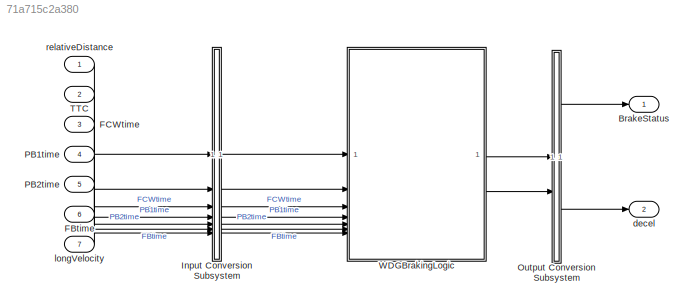
MODEL slx_71a715c2a380
KIND model
CONFIG AbsTol = auto
CONFIG EnableMultiTasking = on
CONFIG FixedStep = 0.10000000000000001
CONFIG MaxStep = auto
CONFIG MinStep = auto
CONFIG RelTol = 1e-3
CONFIG SampleTimeConstraint = Unconstrained
CONFIG SolverName = FixedStepDiscrete
CONFIG StartTime = 0
CONFIG StopTime = 0.5
BLOCK [Outport] BrakeStatus
BLOCK [Inport] FBtime
  Interpolate = off
  OutDataTypeStr = double
  Port = 6
  PortDimensions = [1]
  SampleTime = 0.1
  SignalType = real
  VarSizeSig = No
BLOCK [Inport] FCWtime
  Interpolate = off
  OutDataTypeStr = double
  Port = 3
  PortDimensions = [1]
  SampleTime = 0.1
  SignalType = real
  VarSizeSig = No
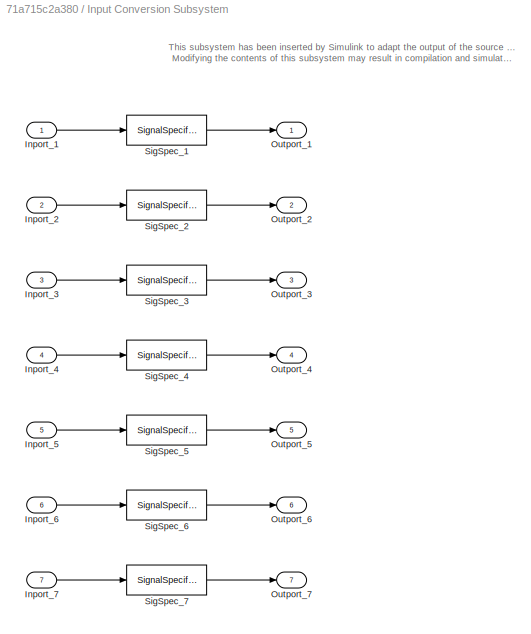
BLOCK [SubSystem] Input Conversion Subsystem
  AttributesFormatString = %<Description>
  Description = Signal spec.\nand routing
  Permissions = ReadOnly
  PermitHierarchicalResolution = ExplicitOnly
  Tag = __SLT_ICS__
  TreatAsGroupedWhenPropagatingVariantConditions = off
  UserDataPersistent = on
BLOCK [Inport] Input Conversion Subsystem/Inport_1
BLOCK [Inport] Input Conversion Subsystem/Inport_2
  Port = 2
BLOCK [Inport] Input Conversion Subsystem/Inport_3
  Port = 3
BLOCK [Inport] Input Conversion Subsystem/Inport_4
  Port = 4
BLOCK [Inport] Input Conversion Subsystem/Inport_5
  Port = 5
BLOCK [Inport] Input Conversion Subsystem/Inport_6
  Port = 6
BLOCK [Inport] Input Conversion Subsystem/Inport_7
  Port = 7
BLOCK [Outport] Input Conversion Subsystem/Outport_1
BLOCK [Outport] Input Conversion Subsystem/Outport_2
  Port = 2
BLOCK [Outport] Input Conversion Subsystem/Outport_3
  Port = 3
BLOCK [Outport] Input Conversion Subsystem/Outport_4
  Port = 4
BLOCK [Outport] Input Conversion Subsystem/Outport_5
  Port = 5
BLOCK [Outport] Input Conversion Subsystem/Outport_6
  Port = 6
BLOCK [Outport] Input Conversion Subsystem/Outport_7
  Port = 7
BLOCK [SignalSpecification] Input Conversion Subsystem/SigSpec_1
  Dimensions = [1]
  OutDataTypeStr = double
  SampleTime = 0.1
  SignalType = real
  Unit = m
  VarSizeSig = No
BLOCK [SignalSpecification] Input Conversion Subsystem/SigSpec_2
  Dimensions = [1]
  OutDataTypeStr = double
  SampleTime = 0.1
  SignalType = real
  Unit = s
  VarSizeSig = No
BLOCK [SignalSpecification] Input Conversion Subsystem/SigSpec_3
  Dimensions = [1]
  OutDataTypeStr = double
  SampleTime = 0.1
  SignalType = real
  Unit = s
  VarSizeSig = No
BLOCK [SignalSpecification] Input Conversion Subsystem/SigSpec_4
  Dimensions = [1]
  OutDataTypeStr = double
  SampleTime = 0.1
  SignalType = real
  Unit = s
  VarSizeSig = No
BLOCK [SignalSpecification] Input Conversion Subsystem/SigSpec_5
  Dimensions = [1]
  OutDataTypeStr = double
  SampleTime = 0.1
  SignalType = real
  Unit = s
  VarSizeSig = No
BLOCK [SignalSpecification] Input Conversion Subsystem/SigSpec_6
  Dimensions = [1]
  OutDataTypeStr = double
  SampleTime = 0.1
  SignalType = real
  Unit = s
  VarSizeSig = No
BLOCK [SignalSpecification] Input Conversion Subsystem/SigSpec_7
  Dimensions = [1]
  OutDataTypeStr = double
  SampleTime = 0.1
  SignalType = real
  Unit = m/s
  VarSizeSig = No
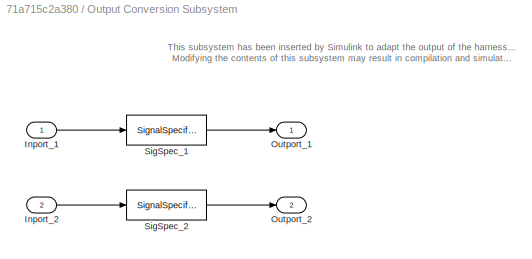
BLOCK [SubSystem] Output Conversion Subsystem
  AttributesFormatString = %<Description>
  Description = Signal spec.\nand routing
  Permissions = ReadOnly
  PermitHierarchicalResolution = ExplicitOnly
  Tag = __SLT_OCS__
  TreatAsGroupedWhenPropagatingVariantConditions = off
  UserDataPersistent = on
BLOCK [Inport] Output Conversion Subsystem/Inport_1
BLOCK [Inport] Output Conversion Subsystem/Inport_2
  Port = 2
BLOCK [Outport] Output Conversion Subsystem/Outport_1
BLOCK [Outport] Output Conversion Subsystem/Outport_2
  Port = 2
BLOCK [SignalSpecification] Output Conversion Subsystem/SigSpec_1
  Dimensions = [1]
  OutDataTypeStr = Enum: BrStatus
  SampleTime = 0.1
  SignalType = real
  VarSizeSig = No
BLOCK [SignalSpecification] Output Conversion Subsystem/SigSpec_2
  Dimensions = [1]
  OutDataTypeStr = double
  SampleTime = 0.1
  SignalType = real
  Unit = m/s^2
  VarSizeSig = No
BLOCK [Inport] PB1time
  Interpolate = off
  OutDataTypeStr = double
  Port = 4
  PortDimensions = [1]
  SampleTime = 0.1
  SignalType = real
  VarSizeSig = No
BLOCK [Inport] PB2time
  Interpolate = off
  OutDataTypeStr = double
  Port = 5
  PortDimensions = [1]
  SampleTime = 0.1
  SignalType = real
  VarSizeSig = No
BLOCK [Inport] TTC
  Interpolate = off
  OutDataTypeStr = double
  Port = 2
  PortDimensions = [1]
  SampleTime = 0.1
  SignalType = real
  VarSizeSig = No
BLOCK [ModelReference] WDGBrakingLogic
  ModelNameDialog = WDGBrakingLogic
  ModelReferenceVersion = 8.0
BLOCK [Outport] decel
  Port = 2
BLOCK [Inport] longVelocity
  Interpolate = off
  OutDataTypeStr = double
  Port = 7
  PortDimensions = [1]
  SampleTime = 0.1
  SignalType = real
  VarSizeSig = No
BLOCK [Inport] relativeDistance
  Interpolate = off
  OutDataTypeStr = double
  PortDimensions = [1]
  SampleTime = 0.1
  SignalType = real
  VarSizeSig = No
ANNOTATION Input Conversion Subsystem: This subsystem has been inserted by Simulink to adapt the output of the source blocks to the interface required by the harnessed component. Modifying the contents of this subsystem may result in compilation and simulation failure.
ANNOTATION Output Conversion Subsystem: This subsystem has been inserted by Simulink to adapt the output of the harnessed component to the interface required by the sink blocks. Modifying the contents of this subsystem may result in compilation and simulation failure.
LINE FBtime:1 -> Input Conversion Subsystem:6
LINE FCWtime:1 -> Input Conversion Subsystem:3
LINE Input Conversion Subsystem/Inport_1:1 -> Input Conversion Subsystem/SigSpec_1:1
LINE Input Conversion Subsystem/Inport_2:1 -> Input Conversion Subsystem/SigSpec_2:1
LINE Input Conversion Subsystem/Inport_3:1 -> Input Conversion Subsystem/SigSpec_3:1
LINE Input Conversion Subsystem/Inport_4:1 -> Input Conversion Subsystem/SigSpec_4:1
LINE Input Conversion Subsystem/Inport_5:1 -> Input Conversion Subsystem/SigSpec_5:1
LINE Input Conversion Subsystem/Inport_6:1 -> Input Conversion Subsystem/SigSpec_6:1
LINE Input Conversion Subsystem/Inport_7:1 -> Input Conversion Subsystem/SigSpec_7:1
LINE Input Conversion Subsystem/SigSpec_1:1 -> Input Conversion Subsystem/Outport_1:1
LINE Input Conversion Subsystem/SigSpec_2:1 -> Input Conversion Subsystem/Outport_2:1
LINE Input Conversion Subsystem/SigSpec_3:1 -> Input Conversion Subsystem/Outport_3:1
LINE Input Conversion Subsystem/SigSpec_4:1 -> Input Conversion Subsystem/Outport_4:1
LINE Input Conversion Subsystem/SigSpec_5:1 -> Input Conversion Subsystem/Outport_5:1
LINE Input Conversion Subsystem/SigSpec_6:1 -> Input Conversion Subsystem/Outport_6:1
LINE Input Conversion Subsystem/SigSpec_7:1 -> Input Conversion Subsystem/Outport_7:1
LINE Input Conversion Subsystem:1 -> WDGBrakingLogic:1
LINE Input Conversion Subsystem:2 -> WDGBrakingLogic:2
LINE Input Conversion Subsystem:3 -> WDGBrakingLogic:3
LINE Input Conversion Subsystem:4 -> WDGBrakingLogic:4
LINE Input Conversion Subsystem:5 -> WDGBrakingLogic:5
LINE Input Conversion Subsystem:6 -> WDGBrakingLogic:6
LINE Input Conversion Subsystem:7 -> WDGBrakingLogic:7
LINE Output Conversion Subsystem/Inport_1:1 -> Output Conversion Subsystem/SigSpec_1:1
LINE Output Conversion Subsystem/Inport_2:1 -> Output Conversion Subsystem/SigSpec_2:1
LINE Output Conversion Subsystem/SigSpec_1:1 -> Output Conversion Subsystem/Outport_1:1
LINE Output Conversion Subsystem/SigSpec_2:1 -> Output Conversion Subsystem/Outport_2:1
LINE Output Conversion Subsystem:1 -> BrakeStatus:1
LINE Output Conversion Subsystem:2 -> decel:1
LINE PB1time:1 -> Input Conversion Subsystem:4
LINE PB2time:1 -> Input Conversion Subsystem:5
LINE TTC:1 -> Input Conversion Subsystem:2
LINE WDGBrakingLogic:1 -> Output Conversion Subsystem:1
LINE WDGBrakingLogic:2 -> Output Conversion Subsystem:2
LINE longVelocity:1 -> Input Conversion Subsystem:7
LINE relativeDistance:1 -> Input Conversion Subsystem:1
